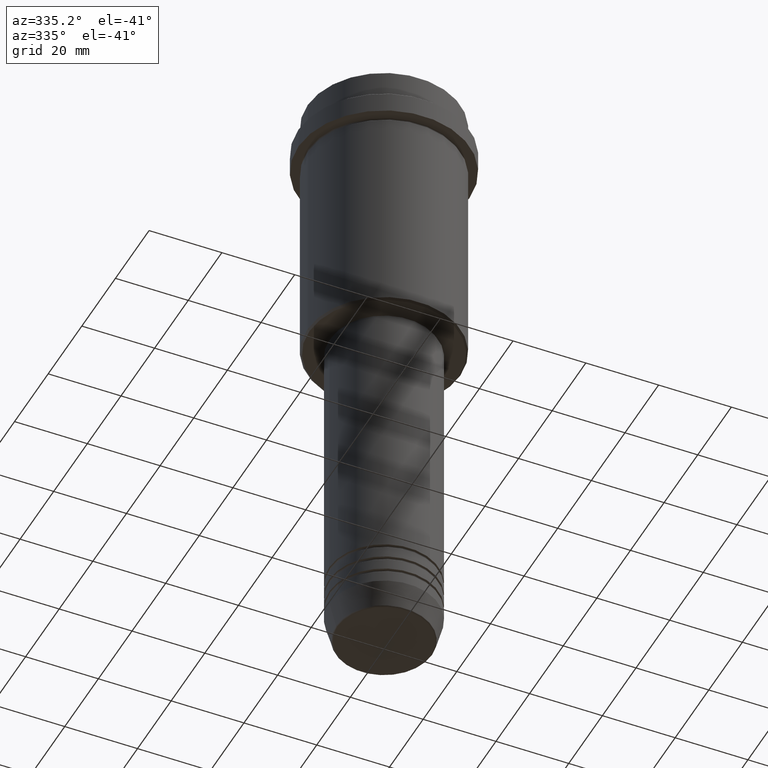
[diagram: clean part render]
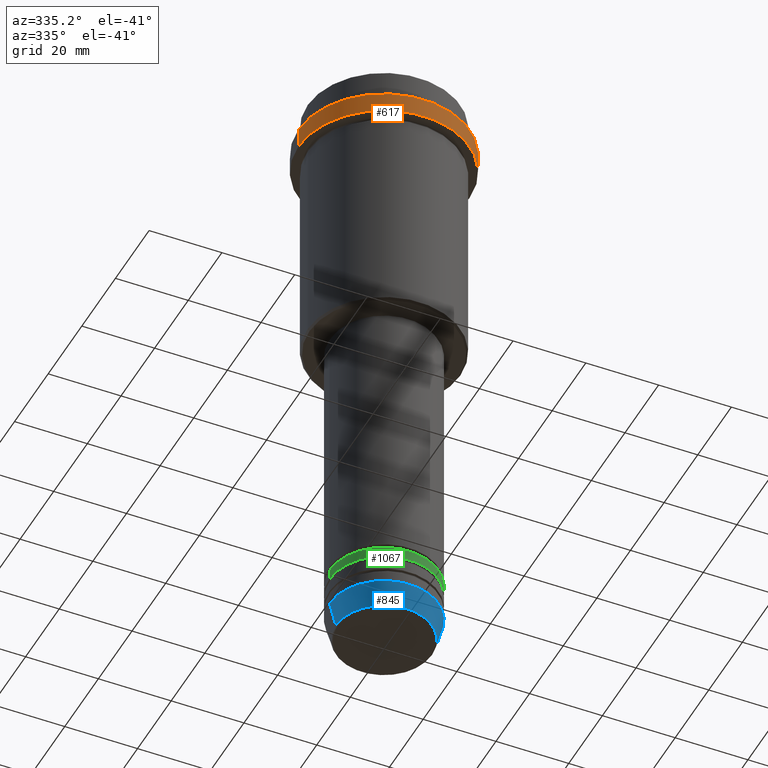
[diagram: same view with three faces highlighted in distinct colors, each labeled with its STEP entity id]
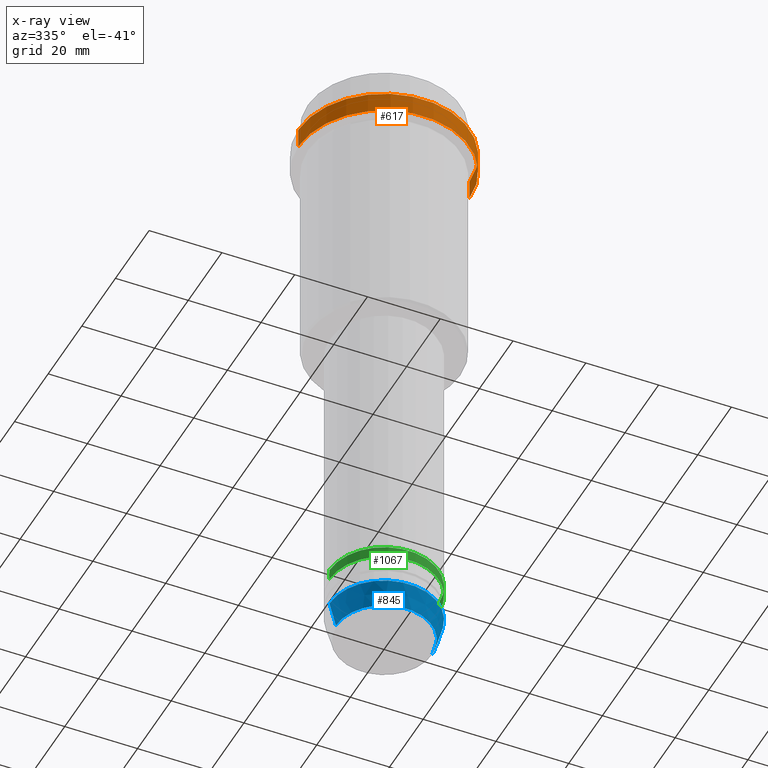
[diagram: x-ray of the same camera — body ghosted, the three highlighted faces saturated]
A machine part, auxiliary view with three faces highlighted in distinct colors.
The next image is the same camera in x-ray (body ghosted, the three faces saturated) — at least one of them is partly hidden behind the body in this view.
Their STEP definitions:

[orange] entity #617 — the highlighted cylindrical surface (partial cylindrical patch) has radius 23.5 mm, axis along (-0, -0, 1).
#9 = DIRECTION ( 'NONE',  ( -0.000000000000000000, -0.000000000000000000, 1.000000000000000000 ) ) ;
#43 = CARTESIAN_POINT ( 'NONE',  ( 0.000000000000000000, 0.000000000000000000, -15.00000000000000000 ) ) ;
#63 = EDGE_CURVE ( 'NONE', #281, #177, #631, .T. ) ;
#104 = CYLINDRICAL_SURFACE ( 'NONE', #381, 23.50000000000000000 ) ;
#177 = VERTEX_POINT ( 'NONE', #721 ) ;
#194 = AXIS2_PLACEMENT_3D ( 'NONE', #43, #690, #664 ) ;
#232 = ORIENTED_EDGE ( 'NONE', *, *, #959, .T. ) ;
#272 = CARTESIAN_POINT ( 'NONE',  ( 23.50000000000000000, 0.000000000000000000, 0.000000000000000000 ) ) ;
#280 = LINE ( 'NONE', #272, #542 ) ;
#281 = VERTEX_POINT ( 'NONE', #832 ) ;
#343 = LINE ( 'NONE', #1351, #356 ) ;
#356 = VECTOR ( 'NONE', #1367, 1000.000000000000000 ) ;
#371 = EDGE_LOOP ( 'NONE', ( #855, #613, #998, #232 ) ) ;
#372 = DIRECTION ( 'NONE',  ( -0.000000000000000000, -0.000000000000000000, 1.000000000000000000 ) ) ;
#381 = AXIS2_PLACEMENT_3D ( 'NONE', #1200, #9, #874 ) ;
#503 = DIRECTION ( 'NONE',  ( 0.000000000000000000, 0.000000000000000000, -1.000000000000000000 ) ) ;
#520 = CARTESIAN_POINT ( 'NONE',  ( 23.50000000000000000, 0.000000000000000000, -9.500000000000026645 ) ) ;
#542 = VECTOR ( 'NONE', #372, 1000.000000000000000 ) ;
#613 = ORIENTED_EDGE ( 'NONE', *, *, #63, .T. ) ;
#617 = ADVANCED_FACE ( 'NONE', ( #1077 ), #104, .T. ) ;
#621 = CARTESIAN_POINT ( 'NONE',  ( -23.50000000000000000, 2.877919977996280320E-15, -9.500000000000026645 ) ) ;
#631 = CIRCLE ( 'NONE', #194, 23.50000000000000355 ) ;
#664 = DIRECTION ( 'NONE',  ( 1.000000000000000000, 0.000000000000000000, 0.000000000000000000 ) ) ;
#690 = DIRECTION ( 'NONE',  ( -0.000000000000000000, -0.000000000000000000, 1.000000000000000000 ) ) ;
#719 = CARTESIAN_POINT ( 'NONE',  ( 0.000000000000000000, 0.000000000000000000, -9.500000000000026645 ) ) ;
#721 = CARTESIAN_POINT ( 'NONE',  ( 23.50000000000000355, 0.000000000000000000, -15.00000000000000000 ) ) ;
#757 = VERTEX_POINT ( 'NONE', #621 ) ;
#815 = DIRECTION ( 'NONE',  ( 1.000000000000000000, 0.000000000000000000, 0.000000000000000000 ) ) ;
#832 = CARTESIAN_POINT ( 'NONE',  ( -23.50000000000000711, 2.877919977996281109E-15, -15.00000000000000000 ) ) ;
#855 = ORIENTED_EDGE ( 'NONE', *, *, #1401, .F. ) ;
#874 = DIRECTION ( 'NONE',  ( 1.000000000000000000, 0.000000000000000000, 0.000000000000000000 ) ) ;
#954 = EDGE_CURVE ( 'NONE', #177, #1254, #280, .T. ) ;
#959 = EDGE_CURVE ( 'NONE', #1254, #757, #1110, .T. ) ;
#998 = ORIENTED_EDGE ( 'NONE', *, *, #954, .T. ) ;
#1077 = FACE_OUTER_BOUND ( 'NONE', #371, .T. ) ;
#1110 = CIRCLE ( 'NONE', #1279, 23.50000000000000000 ) ;
#1200 = CARTESIAN_POINT ( 'NONE',  ( 0.000000000000000000, 0.000000000000000000, 0.000000000000000000 ) ) ;
#1254 = VERTEX_POINT ( 'NONE', #520 ) ;
#1279 = AXIS2_PLACEMENT_3D ( 'NONE', #719, #503, #815 ) ;
#1351 = CARTESIAN_POINT ( 'NONE',  ( -23.50000000000000000, 2.877919977996280320E-15, 0.000000000000000000 ) ) ;
#1367 = DIRECTION ( 'NONE',  ( -0.000000000000000000, -0.000000000000000000, 1.000000000000000000 ) ) ;
#1401 = EDGE_CURVE ( 'NONE', #281, #757, #343, .T. ) ;

[blue] entity #845 — the highlighted conical surface has half-angle 15 deg.
#13 = FACE_OUTER_BOUND ( 'NONE', #1068, .T. ) ;
#21 = CIRCLE ( 'NONE', #808, 13.22365507213718772 ) ;
#29 = CARTESIAN_POINT ( 'NONE',  ( 15.00000000000000000, 0.000000000000000000, -163.0000000000000000 ) ) ;
#67 = EDGE_CURVE ( 'NONE', #222, #776, #794, .T. ) ;
#95 = DIRECTION ( 'NONE',  ( -0.000000000000000000, -0.000000000000000000, 1.000000000000000000 ) ) ;
#114 = DIRECTION ( 'NONE',  ( -0.000000000000000000, -0.000000000000000000, 1.000000000000000000 ) ) ;
#129 = AXIS2_PLACEMENT_3D ( 'NONE', #739, #95, #734 ) ;
#141 = CARTESIAN_POINT ( 'NONE',  ( 15.00000000000000000, 0.000000000000000000, -163.0000000000000000 ) ) ;
#218 = ORIENTED_EDGE ( 'NONE', *, *, #685, .F. ) ;
#222 = VERTEX_POINT ( 'NONE', #965 ) ;
#237 = DIRECTION ( 'NONE',  ( -0.2588190451025213501, 3.169619151431772337E-17, 0.9659258262890680902 ) ) ;
#253 = DIRECTION ( 'NONE',  ( 0.2588190451025213501, 0.000000000000000000, 0.9659258262890680902 ) ) ;
#326 = VERTEX_POINT ( 'NONE', #716 ) ;
#347 = DIRECTION ( 'NONE',  ( -0.000000000000000000, -0.000000000000000000, 1.000000000000000000 ) ) ;
#360 = DIRECTION ( 'NONE',  ( 1.000000000000000000, 0.000000000000000000, 0.000000000000000000 ) ) ;
#385 = EDGE_CURVE ( 'NONE', #1157, #222, #21, .T. ) ;
#457 = CARTESIAN_POINT ( 'NONE',  ( 0.000000000000000000, 0.000000000000000000, -169.6294095225512706 ) ) ;
#510 = EDGE_CURVE ( 'NONE', #1157, #326, #780, .T. ) ;
#541 = AXIS2_PLACEMENT_3D ( 'NONE', #764, #114, #360 ) ;
#638 = CARTESIAN_POINT ( 'NONE',  ( -13.22365507213718772, 1.728200442216588189E-15, -169.6294095225512706 ) ) ;
#657 = VECTOR ( 'NONE', #237, 1000.000000000000000 ) ;
#678 = VECTOR ( 'NONE', #253, 1000.000000000000000 ) ;
#685 = EDGE_CURVE ( 'NONE', #326, #776, #1181, .T. ) ;
#716 = CARTESIAN_POINT ( 'NONE',  ( -15.00000000000000000, 1.836970198721029589E-15, -163.0000000000000000 ) ) ;
#734 = DIRECTION ( 'NONE',  ( 1.000000000000000000, 0.000000000000000000, 0.000000000000000000 ) ) ;
#739 = CARTESIAN_POINT ( 'NONE',  ( 0.000000000000000000, 0.000000000000000000, -163.0000000000000000 ) ) ;
#764 = CARTESIAN_POINT ( 'NONE',  ( 0.000000000000000000, 0.000000000000000000, -163.0000000000000000 ) ) ;
#776 = VERTEX_POINT ( 'NONE', #29 ) ;
#780 = LINE ( 'NONE', #1223, #657 ) ;
#794 = LINE ( 'NONE', #141, #678 ) ;
#808 = AXIS2_PLACEMENT_3D ( 'NONE', #457, #347, #1109 ) ;
#845 = ADVANCED_FACE ( 'NONE', ( #13 ), #1159, .T. ) ;
#965 = CARTESIAN_POINT ( 'NONE',  ( 13.22365507213718772, 0.000000000000000000, -169.6294095225512706 ) ) ;
#1068 = EDGE_LOOP ( 'NONE', ( #1121, #1196, #1402, #218 ) ) ;
#1109 = DIRECTION ( 'NONE',  ( 1.000000000000000000, 0.000000000000000000, 0.000000000000000000 ) ) ;
#1121 = ORIENTED_EDGE ( 'NONE', *, *, #510, .F. ) ;
#1157 = VERTEX_POINT ( 'NONE', #638 ) ;
#1159 = CONICAL_SURFACE ( 'NONE', #541, 15.00000000000000000, 0.2617993877991500740 ) ;
#1181 = CIRCLE ( 'NONE', #129, 15.00000000000000000 ) ;
#1196 = ORIENTED_EDGE ( 'NONE', *, *, #385, .T. ) ;
#1223 = CARTESIAN_POINT ( 'NONE',  ( -15.00000000000000000, 1.836970198721029589E-15, -163.0000000000000000 ) ) ;
#1402 = ORIENTED_EDGE ( 'NONE', *, *, #67, .T. ) ;

[green] entity #1067 — the highlighted cylindrical surface (partial cylindrical patch) has radius 15 mm, axis along (-0, -0, 1).
#17 = CARTESIAN_POINT ( 'NONE',  ( -15.00000000000000000, 1.836970198721029589E-15, 0.000000000000000000 ) ) ;
#51 = DIRECTION ( 'NONE',  ( -0.000000000000000000, -0.000000000000000000, 1.000000000000000000 ) ) ;
#55 = CARTESIAN_POINT ( 'NONE',  ( -15.00000000000000000, 1.836970198721029589E-15, -154.9999999999999147 ) ) ;
#64 = AXIS2_PLACEMENT_3D ( 'NONE', #911, #51, #601 ) ;
#90 = EDGE_LOOP ( 'NONE', ( #1273, #450, #181, #548 ) ) ;
#97 = EDGE_CURVE ( 'NONE', #203, #1145, #535, .T. ) ;
#115 = DIRECTION ( 'NONE',  ( -0.000000000000000000, -0.000000000000000000, 1.000000000000000000 ) ) ;
#146 = FACE_OUTER_BOUND ( 'NONE', #90, .T. ) ;
#181 = ORIENTED_EDGE ( 'NONE', *, *, #396, .T. ) ;
#203 = VERTEX_POINT ( 'NONE', #1141 ) ;
#224 = CARTESIAN_POINT ( 'NONE',  ( 15.00000000000000000, 0.000000000000000000, 0.000000000000000000 ) ) ;
#247 = CARTESIAN_POINT ( 'NONE',  ( 0.000000000000000000, 0.000000000000000000, -151.9999999999999147 ) ) ;
#396 = EDGE_CURVE ( 'NONE', #626, #1145, #782, .T. ) ;
#409 = CARTESIAN_POINT ( 'NONE',  ( 15.00000000000000000, 0.000000000000000000, -151.9999999999999147 ) ) ;
#450 = ORIENTED_EDGE ( 'NONE', *, *, #1016, .T. ) ;
#535 = CIRCLE ( 'NONE', #1321, 15.00000000000000000 ) ;
#548 = ORIENTED_EDGE ( 'NONE', *, *, #97, .F. ) ;
#589 = CYLINDRICAL_SURFACE ( 'NONE', #64, 15.00000000000000000 ) ;
#601 = DIRECTION ( 'NONE',  ( 1.000000000000000000, 0.000000000000000000, 0.000000000000000000 ) ) ;
#610 = AXIS2_PLACEMENT_3D ( 'NONE', #1382, #1148, #1162 ) ;
#626 = VERTEX_POINT ( 'NONE', #1163 ) ;
#686 = DIRECTION ( 'NONE',  ( 1.000000000000000000, 0.000000000000000000, 0.000000000000000000 ) ) ;
#774 = DIRECTION ( 'NONE',  ( -0.000000000000000000, -0.000000000000000000, 1.000000000000000000 ) ) ;
#782 = LINE ( 'NONE', #224, #1275 ) ;
#784 = DIRECTION ( 'NONE',  ( -0.000000000000000000, -0.000000000000000000, 1.000000000000000000 ) ) ;
#856 = CIRCLE ( 'NONE', #610, 15.00000000000000000 ) ;
#911 = CARTESIAN_POINT ( 'NONE',  ( 0.000000000000000000, 0.000000000000000000, 0.000000000000000000 ) ) ;
#972 = LINE ( 'NONE', #17, #1034 ) ;
#1016 = EDGE_CURVE ( 'NONE', #1404, #626, #856, .T. ) ;
#1034 = VECTOR ( 'NONE', #784, 1000.000000000000000 ) ;
#1067 = ADVANCED_FACE ( 'NONE', ( #146 ), #589, .T. ) ;
#1141 = CARTESIAN_POINT ( 'NONE',  ( -15.00000000000000000, 1.836970198721029589E-15, -151.9999999999999147 ) ) ;
#1145 = VERTEX_POINT ( 'NONE', #409 ) ;
#1148 = DIRECTION ( 'NONE',  ( -0.000000000000000000, -0.000000000000000000, 1.000000000000000000 ) ) ;
#1162 = DIRECTION ( 'NONE',  ( 1.000000000000000000, 0.000000000000000000, 0.000000000000000000 ) ) ;
#1163 = CARTESIAN_POINT ( 'NONE',  ( 15.00000000000000000, 0.000000000000000000, -154.9999999999999147 ) ) ;
#1273 = ORIENTED_EDGE ( 'NONE', *, *, #1283, .F. ) ;
#1275 = VECTOR ( 'NONE', #115, 1000.000000000000000 ) ;
#1283 = EDGE_CURVE ( 'NONE', #1404, #203, #972, .T. ) ;
#1321 = AXIS2_PLACEMENT_3D ( 'NONE', #247, #774, #686 ) ;
#1382 = CARTESIAN_POINT ( 'NONE',  ( 0.000000000000000000, 0.000000000000000000, -154.9999999999999147 ) ) ;
#1404 = VERTEX_POINT ( 'NONE', #55 ) ;